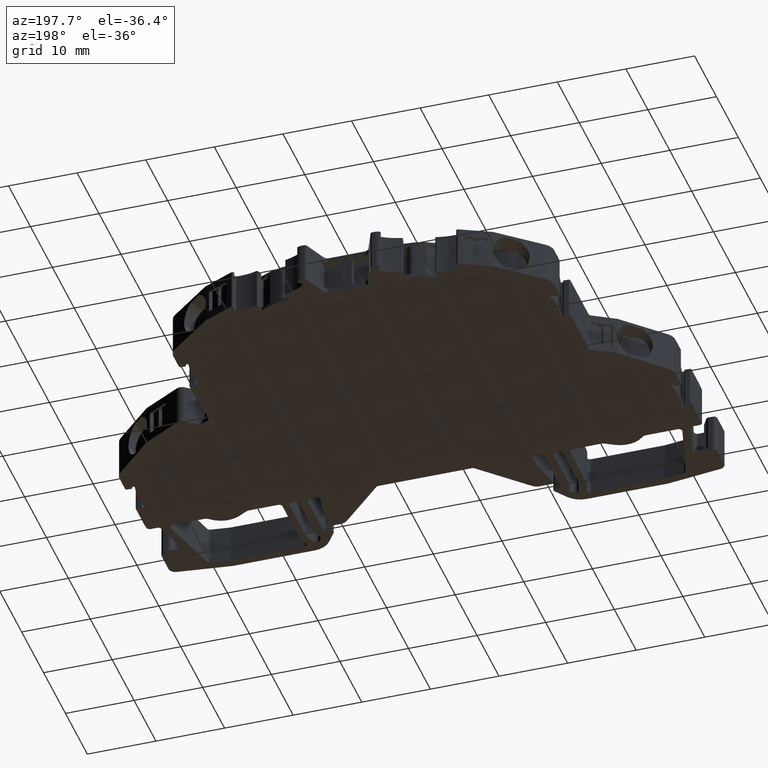
[diagram: clean part render]
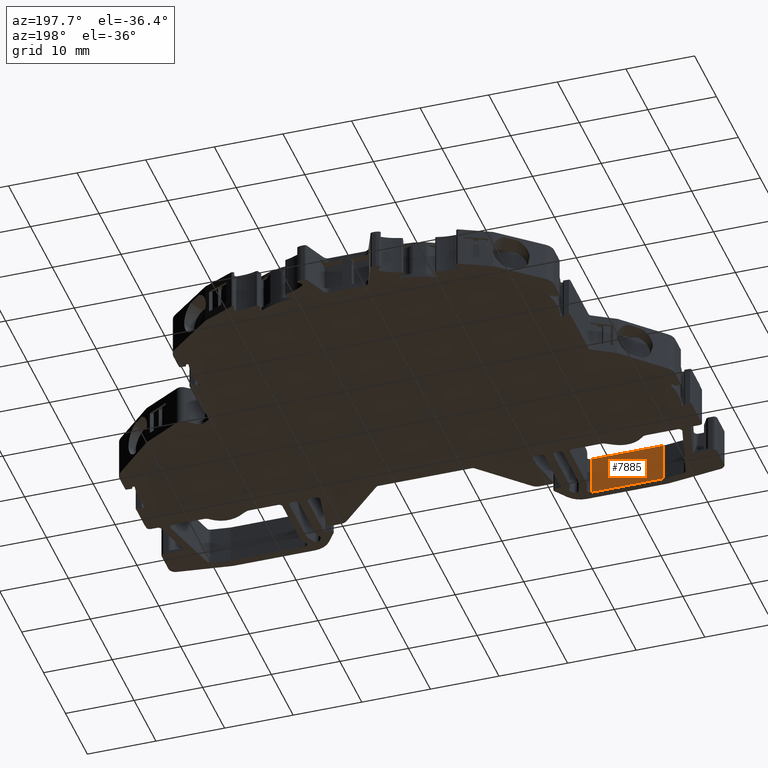
[diagram: same view with one face highlighted and labeled with its STEP entity id]
A machine part, auxiliary view. The second image highlights one B-rep face of the part: STEP entity #7885.
In plain terms, the highlighted planar face has unit normal (0, 1, 0).
Its self-contained STEP definition (entity closure, byte-faithful):
#1520 = VECTOR ( 'NONE', #16936, 1000.000000000000000 ) ;
#1985 = FACE_OUTER_BOUND ( 'NONE', #2868, .T. ) ;
#2019 = CARTESIAN_POINT ( 'NONE',  ( 454.7990482216059700, -354.9950001424455200, -54.50000000000000000 ) ) ;
#2020 = DIRECTION ( 'NONE',  ( 5.254355787593750600E-015, 1.000000000000000000, 0.0000000000000000000 ) ) ;
#2022 = DIRECTION ( 'NONE',  ( -1.000000000000000000, 5.254355787593750600E-015, 0.0000000000000000000 ) ) ;
#2037 = PLANE ( 'NONE',  #18783 ) ;
#2241 = VERTEX_POINT ( 'NONE', #11175 ) ;
#2296 = VERTEX_POINT ( 'NONE', #11316 ) ;
#2322 = VERTEX_POINT ( 'NONE', #11295 ) ;
#2340 = VERTEX_POINT ( 'NONE', #11297 ) ;
#2868 = EDGE_LOOP ( 'NONE', ( #16464, #16470, #16475, #16438 ) ) ;
#3104 = EDGE_CURVE ( 'NONE', #2322, #2340, #3616, .T. ) ;
#3105 = EDGE_CURVE ( 'NONE', #2241, #2322, #3642, .T. ) ;
#3151 = EDGE_CURVE ( 'NONE', #2340, #2296, #3743, .T. ) ;
#3547 = EDGE_CURVE ( 'NONE', #2241, #2296, #16900, .T. ) ;
#3605 = CARTESIAN_POINT ( 'NONE',  ( 465.3638355095790200, -354.9950001424455200, -54.50000000000000000 ) ) ;
#3616 = LINE ( 'NONE', #3605, #15028 ) ;
#3626 = CARTESIAN_POINT ( 'NONE',  ( 454.7990482216059700, -354.9950001424455200, -54.14999999999999900 ) ) ;
#3630 = DIRECTION ( 'NONE',  ( 1.000000000000000000, -5.254355787593750600E-015, 0.0000000000000000000 ) ) ;
#3638 = DIRECTION ( 'NONE',  ( 0.0000000000000000000, 0.0000000000000000000, -1.000000000000000000 ) ) ;
#3642 = LINE ( 'NONE', #3626, #15033 ) ;
#3739 = DIRECTION ( 'NONE',  ( -1.000000000000000000, 5.254355787593750600E-015, 0.0000000000000000000 ) ) ;
#3743 = LINE ( 'NONE', #3752, #14935 ) ;
#3752 = CARTESIAN_POINT ( 'NONE',  ( 454.7990482216059700, -354.9950001424455200, -59.85000000000000100 ) ) ;
#7885 = ADVANCED_FACE ( 'NONE', ( #1985 ), #2037, .T. ) ;
#11175 = CARTESIAN_POINT ( 'NONE',  ( 454.7990482216059700, -354.9950001424455200, -54.14999999999999900 ) ) ;
#11295 = CARTESIAN_POINT ( 'NONE',  ( 465.3638355095790200, -354.9950001424455200, -54.14999999999999900 ) ) ;
#11297 = CARTESIAN_POINT ( 'NONE',  ( 465.3638355095790200, -354.9950001424455800, -59.85000000000000100 ) ) ;
#11316 = CARTESIAN_POINT ( 'NONE',  ( 454.7990482216059700, -354.9950001424454100, -59.85000000000000100 ) ) ;
#14935 = VECTOR ( 'NONE', #3739, 1000.000000000000000 ) ;
#15028 = VECTOR ( 'NONE', #3638, 1000.000000000000000 ) ;
#15033 = VECTOR ( 'NONE', #3630, 1000.000000000000000 ) ;
#16438 = ORIENTED_EDGE ( 'NONE', *, *, #3105, .T. ) ;
#16464 = ORIENTED_EDGE ( 'NONE', *, *, #3104, .T. ) ;
#16470 = ORIENTED_EDGE ( 'NONE', *, *, #3151, .T. ) ;
#16475 = ORIENTED_EDGE ( 'NONE', *, *, #3547, .F. ) ;
#16900 = LINE ( 'NONE', #16932, #1520 ) ;
#16932 = CARTESIAN_POINT ( 'NONE',  ( 454.7990482216059700, -354.9950001424455200, -54.50000000000000000 ) ) ;
#16936 = DIRECTION ( 'NONE',  ( 0.0000000000000000000, 0.0000000000000000000, -1.000000000000000000 ) ) ;
#18783 = AXIS2_PLACEMENT_3D ( 'NONE', #2019, #2020, #2022 ) ;